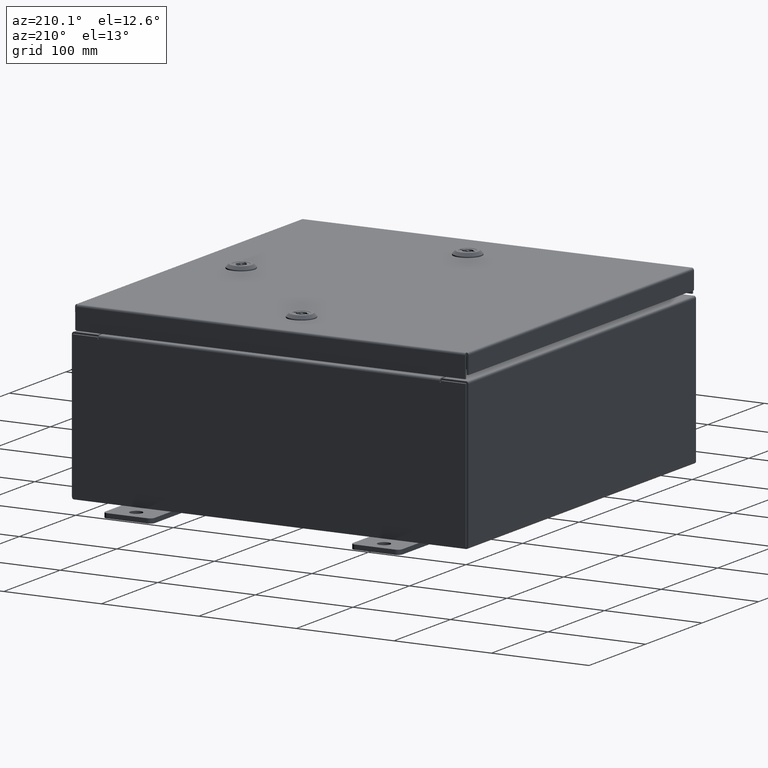
[diagram: clean part render]
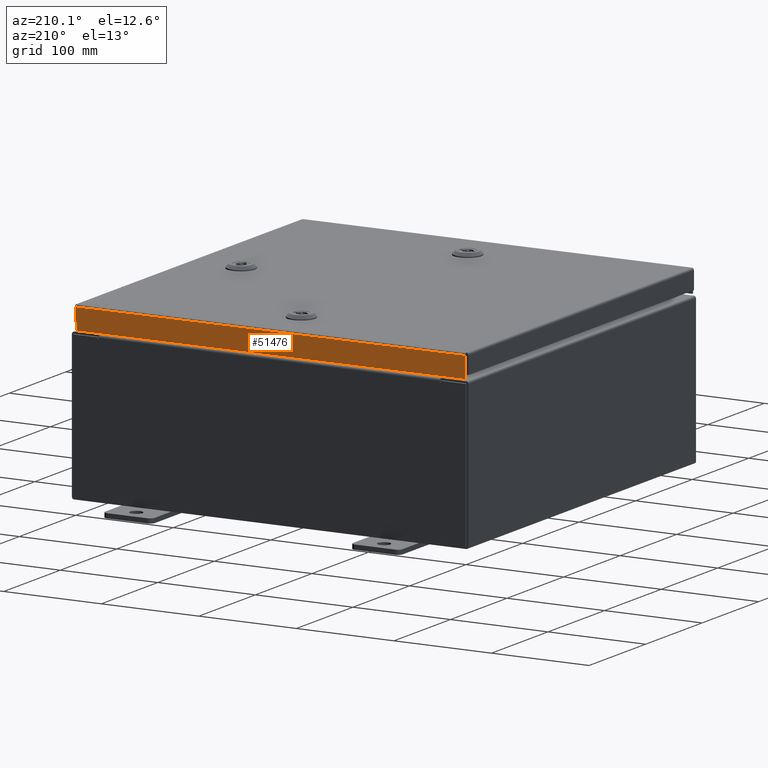
[diagram: same view with one face highlighted and labeled with its STEP entity id]
A machine part, auxiliary view. The second image highlights one B-rep face of the part: STEP entity #51476.
In plain terms, the highlighted planar face has unit normal (-0, -1, -0).
Its self-contained STEP definition (entity closure, byte-faithful):
#4179 = VERTEX_POINT ( 'NONE', #43394 ) ;
#4567 = PLANE ( 'NONE',  #12031 ) ;
#4777 = CARTESIAN_POINT ( 'NONE',  ( -7.848657864376269400, 7.937500000000003600, -0.9377000000000018700 ) ) ;
#8911 = VECTOR ( 'NONE', #13353, 39.37007874015748100 ) ;
#9788 = DIRECTION ( 'NONE',  ( 0.0000000000000000000, 3.798629886902790100E-015, -1.000000000000000000 ) ) ;
#10720 = VECTOR ( 'NONE', #51154, 39.37007874015748100 ) ;
#12031 = AXIS2_PLACEMENT_3D ( 'NONE', #38063, #52480, #23926 ) ;
#13353 = DIRECTION ( 'NONE',  ( 1.000000000000000000, -0.0000000000000000000, 1.290636847400439300E-016 ) ) ;
#13988 = LINE ( 'NONE', #43109, #47546 ) ;
#14788 = FACE_OUTER_BOUND ( 'NONE', #40768, .T. ) ;
#15767 = CARTESIAN_POINT ( 'NONE',  ( 7.848657864376269400, 7.937500000000003600, -0.9376999999999996400 ) ) ;
#19255 = DIRECTION ( 'NONE',  ( -1.000000000000000000, -4.902651701673304100E-031, -1.880652595880180800E-045 ) ) ;
#20589 = EDGE_CURVE ( 'NONE', #39548, #46158, #13988, .T. ) ;
#22214 = ORIENTED_EDGE ( 'NONE', *, *, #49531, .F. ) ;
#23424 = LINE ( 'NONE', #32379, #10720 ) ;
#23926 = DIRECTION ( 'NONE',  ( 0.0000000000000000000, 3.798629886902790100E-015, -1.000000000000000000 ) ) ;
#26113 = VECTOR ( 'NONE', #19255, 39.37007874015748100 ) ;
#32379 = CARTESIAN_POINT ( 'NONE',  ( -7.848657864376269400, 7.937500000000000000, -0.07469999999999972500 ) ) ;
#36413 = ORIENTED_EDGE ( 'NONE', *, *, #20589, .T. ) ;
#37406 = EDGE_CURVE ( 'NONE', #4179, #52721, #23424, .T. ) ;
#38063 = CARTESIAN_POINT ( 'NONE',  ( -3.891479788203184800E-030, 7.937500000000000000, 3.041243838330248100E-014 ) ) ;
#38745 = LINE ( 'NONE', #57801, #26113 ) ;
#39548 = VERTEX_POINT ( 'NONE', #58057 ) ;
#39665 = ORIENTED_EDGE ( 'NONE', *, *, #37406, .F. ) ;
#40768 = EDGE_LOOP ( 'NONE', ( #22214, #36413, #43308, #39665 ) ) ;
#41897 = CARTESIAN_POINT ( 'NONE',  ( -7.937500000000000000, 7.937500000000003600, -0.9377000000000018700 ) ) ;
#43109 = CARTESIAN_POINT ( 'NONE',  ( 7.848657864376269400, 7.937500000000000000, 3.041243838330248100E-014 ) ) ;
#43308 = ORIENTED_EDGE ( 'NONE', *, *, #50618, .F. ) ;
#43394 = CARTESIAN_POINT ( 'NONE',  ( -7.848657864376269400, 7.937500000000000000, -0.08769999999999997200 ) ) ;
#45429 = LINE ( 'NONE', #41897, #8911 ) ;
#46158 = VERTEX_POINT ( 'NONE', #15767 ) ;
#47546 = VECTOR ( 'NONE', #9788, 39.37007874015748100 ) ;
#49531 = EDGE_CURVE ( 'NONE', #39548, #4179, #38745, .T. ) ;
#50618 = EDGE_CURVE ( 'NONE', #52721, #46158, #45429, .T. ) ;
#51154 = DIRECTION ( 'NONE',  ( -0.0000000000000000000, 3.798629886902790100E-015, -1.000000000000000000 ) ) ;
#51476 = ADVANCED_FACE ( 'NONE', ( #14788 ), #4567, .F. ) ;
#52480 = DIRECTION ( 'NONE',  ( 4.902651701673304100E-031, -1.000000000000000000, -3.798629886902790100E-015 ) ) ;
#52721 = VERTEX_POINT ( 'NONE', #4777 ) ;
#57801 = CARTESIAN_POINT ( 'NONE',  ( -7.937500000000000000, 7.937500000000000000, -0.08769999999999997200 ) ) ;
#58057 = CARTESIAN_POINT ( 'NONE',  ( 7.848657864376269400, 7.937500000000000000, -0.08769999999999997200 ) ) ;